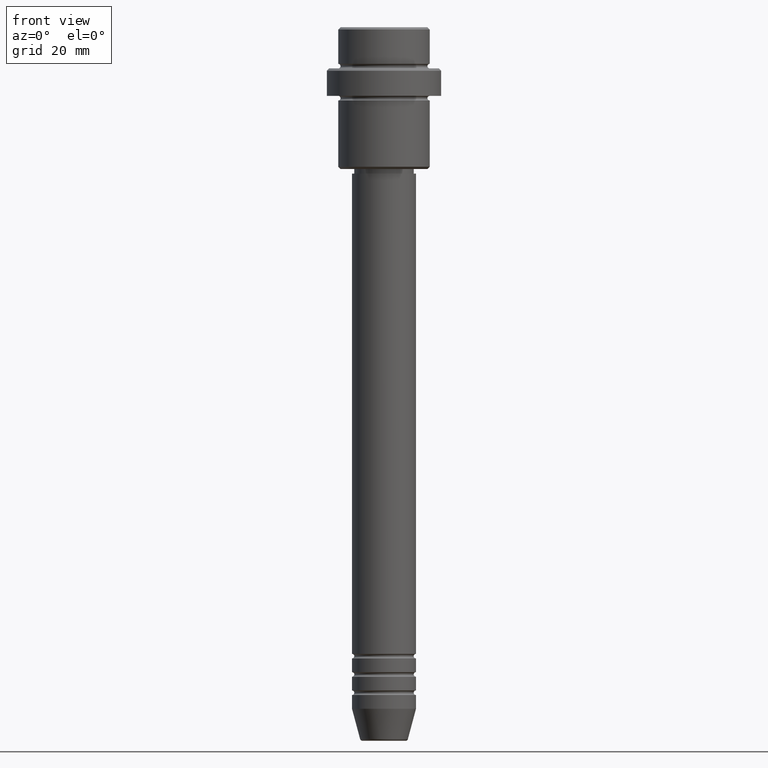
[diagram: clean part render]
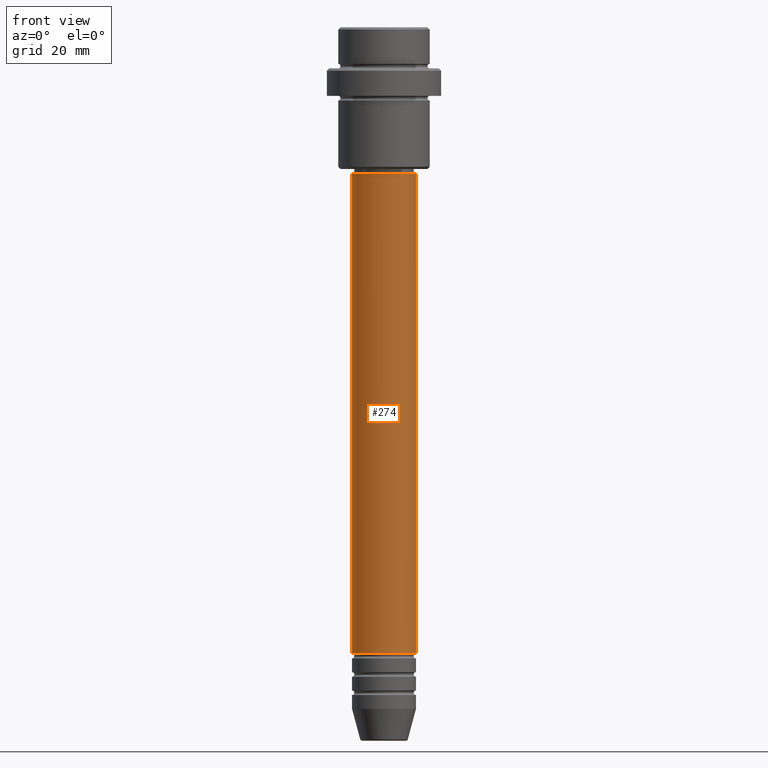
[diagram: same view with one face highlighted and labeled with its STEP entity id]
A machine part, front view. The second image highlights one B-rep face of the part: STEP entity #274.
In plain terms, the highlighted cylindrical surface (edge-blend (fillet) strip) has radius 7 mm, axis along (-0, -0, 1).
Its self-contained STEP definition (entity closure, byte-faithful):
#14 = CIRCLE ( 'NONE', #314, 7.000000000000000000 ) ;
#80 = DIRECTION ( 'NONE',  ( -0.000000000000000000, -0.000000000000000000, 1.000000000000000000 ) ) ;
#104 = AXIS2_PLACEMENT_3D ( 'NONE', #843, #200, #1151 ) ;
#118 = VERTEX_POINT ( 'NONE', #626 ) ;
#145 = DIRECTION ( 'NONE',  ( -0.000000000000000000, -0.000000000000000000, 1.000000000000000000 ) ) ;
#164 = EDGE_CURVE ( 'NONE', #118, #1101, #769, .T. ) ;
#176 = EDGE_LOOP ( 'NONE', ( #1236, #905, #1181, #1137 ) ) ;
#200 = DIRECTION ( 'NONE',  ( -0.000000000000000000, -0.000000000000000000, 1.000000000000000000 ) ) ;
#219 = AXIS2_PLACEMENT_3D ( 'NONE', #711, #800, #371 ) ;
#252 = LINE ( 'NONE', #676, #901 ) ;
#274 = ADVANCED_FACE ( 'NONE', ( #1118 ), #361, .T. ) ;
#314 = AXIS2_PLACEMENT_3D ( 'NONE', #384, #466, #920 ) ;
#361 = CYLINDRICAL_SURFACE ( 'NONE', #219, 7.000000000000000000 ) ;
#371 = DIRECTION ( 'NONE',  ( 1.000000000000000000, 0.000000000000000000, 0.000000000000000000 ) ) ;
#384 = CARTESIAN_POINT ( 'NONE',  ( 0.000000000000000000, 0.000000000000000000, -32.00000000000000000 ) ) ;
#466 = DIRECTION ( 'NONE',  ( -0.000000000000000000, -0.000000000000000000, 1.000000000000000000 ) ) ;
#537 = CARTESIAN_POINT ( 'NONE',  ( 7.000000000000000000, 0.000000000000000000, -136.9999999999998863 ) ) ;
#574 = EDGE_CURVE ( 'NONE', #1189, #707, #14, .T. ) ;
#609 = CARTESIAN_POINT ( 'NONE',  ( 7.000000000000000000, 0.000000000000000000, 0.000000000000000000 ) ) ;
#626 = CARTESIAN_POINT ( 'NONE',  ( -7.000000000000000000, 8.572527594031473190E-16, -136.9999999999998863 ) ) ;
#647 = CARTESIAN_POINT ( 'NONE',  ( -7.000000000000000000, 8.572527594031473190E-16, -32.00000000000000000 ) ) ;
#676 = CARTESIAN_POINT ( 'NONE',  ( -7.000000000000000000, 8.572527594031473190E-16, 0.000000000000000000 ) ) ;
#707 = VERTEX_POINT ( 'NONE', #1412 ) ;
#711 = CARTESIAN_POINT ( 'NONE',  ( 0.000000000000000000, 0.000000000000000000, 0.000000000000000000 ) ) ;
#769 = CIRCLE ( 'NONE', #104, 7.000000000000000000 ) ;
#800 = DIRECTION ( 'NONE',  ( -0.000000000000000000, -0.000000000000000000, 1.000000000000000000 ) ) ;
#843 = CARTESIAN_POINT ( 'NONE',  ( 0.000000000000000000, 0.000000000000000000, -136.9999999999998863 ) ) ;
#849 = EDGE_CURVE ( 'NONE', #118, #1189, #252, .T. ) ;
#879 = VECTOR ( 'NONE', #80, 1000.000000000000000 ) ;
#901 = VECTOR ( 'NONE', #145, 1000.000000000000000 ) ;
#905 = ORIENTED_EDGE ( 'NONE', *, *, #164, .T. ) ;
#920 = DIRECTION ( 'NONE',  ( 1.000000000000000000, 0.000000000000000000, 0.000000000000000000 ) ) ;
#930 = EDGE_CURVE ( 'NONE', #1101, #707, #1021, .T. ) ;
#1021 = LINE ( 'NONE', #609, #879 ) ;
#1101 = VERTEX_POINT ( 'NONE', #537 ) ;
#1118 = FACE_OUTER_BOUND ( 'NONE', #176, .T. ) ;
#1137 = ORIENTED_EDGE ( 'NONE', *, *, #574, .F. ) ;
#1151 = DIRECTION ( 'NONE',  ( 1.000000000000000000, 0.000000000000000000, 0.000000000000000000 ) ) ;
#1181 = ORIENTED_EDGE ( 'NONE', *, *, #930, .T. ) ;
#1189 = VERTEX_POINT ( 'NONE', #647 ) ;
#1236 = ORIENTED_EDGE ( 'NONE', *, *, #849, .F. ) ;
#1412 = CARTESIAN_POINT ( 'NONE',  ( 7.000000000000000000, 0.000000000000000000, -32.00000000000000000 ) ) ;